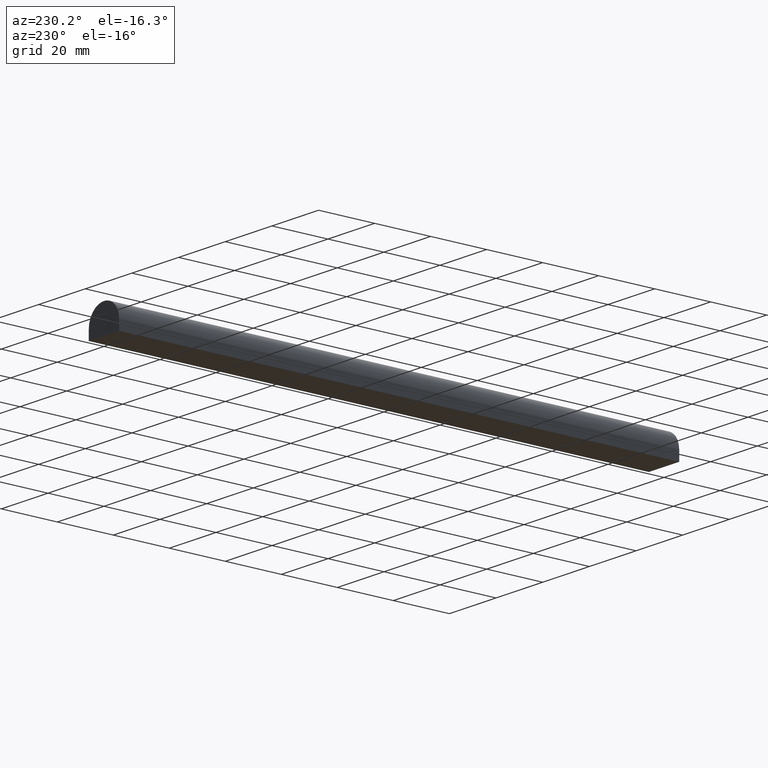
[diagram: clean part render]
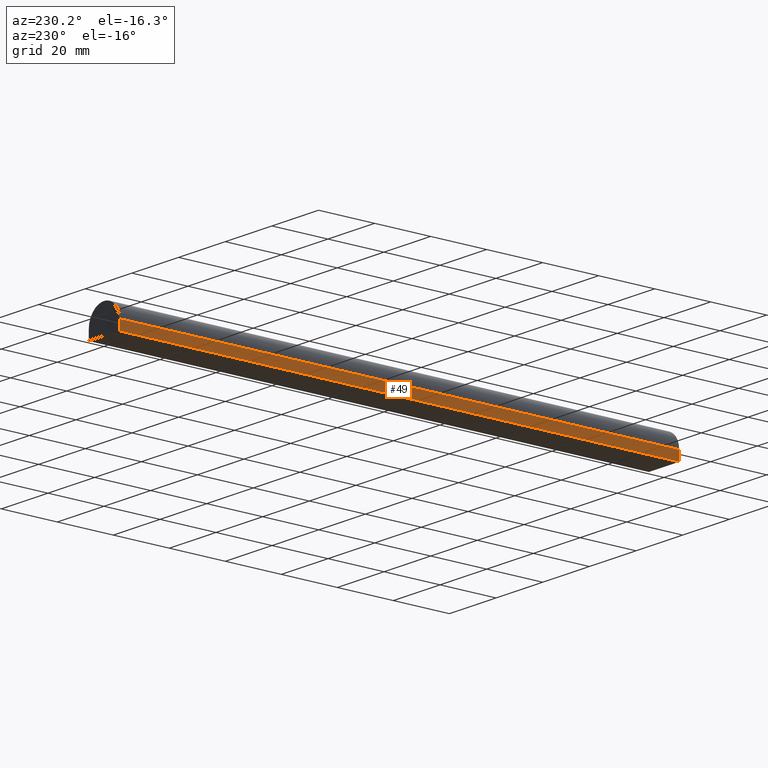
[diagram: same view with one face highlighted and labeled with its STEP entity id]
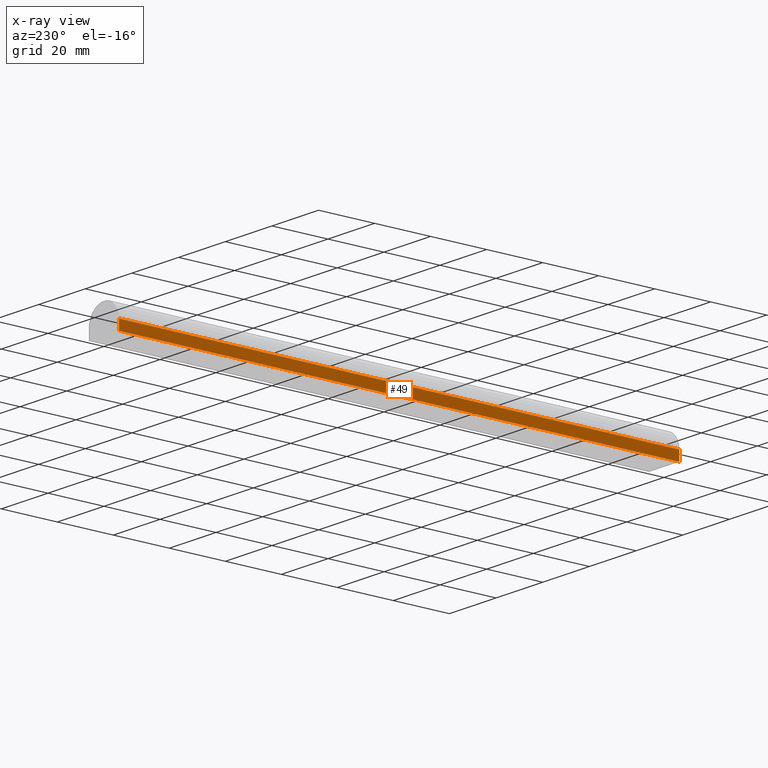
[diagram: x-ray of the same camera — body ghosted, the highlighted face saturated]
A machine part, auxiliary view. The second image highlights one B-rep face of the part: STEP entity #49.
The next image is the same camera in x-ray: the body ghosted, the highlighted face saturated — about 0% of this face is hidden behind the body in this view.
In plain terms, the highlighted planar face has unit normal (-1, 0, 0).
Its self-contained STEP definition (entity closure, byte-faithful):
#1 = VERTEX_POINT ( 'NONE', #234 ) ;
#3 = CARTESIAN_POINT ( 'NONE',  ( -6.500000000000000000, 1000.000000000000000, -5.000000000000000000 ) ) ;
#7 = AXIS2_PLACEMENT_3D ( 'NONE', #79, #198, #221 ) ;
#9 = VECTOR ( 'NONE', #52, 1000.000000000000000 ) ;
#14 = EDGE_CURVE ( 'NONE', #135, #1, #136, .T. ) ;
#18 = ORIENTED_EDGE ( 'NONE', *, *, #14, .F. ) ;
#41 = VECTOR ( 'NONE', #200, 1000.000000000000000 ) ;
#44 = ORIENTED_EDGE ( 'NONE', *, *, #101, .T. ) ;
#46 = FACE_OUTER_BOUND ( 'NONE', #140, .T. ) ;
#49 = ADVANCED_FACE ( 'NONE', ( #46 ), #230, .T. ) ;
#52 = DIRECTION ( 'NONE',  ( 0.0000000000000000000, -1.000000000000000000, 0.0000000000000000000 ) ) ;
#63 = LINE ( 'NONE', #3, #9 ) ;
#64 = VECTOR ( 'NONE', #93, 1000.000000000000000 ) ;
#79 = CARTESIAN_POINT ( 'NONE',  ( -6.500000000000000000, 1000.000000000000000, -1.500000000000000000 ) ) ;
#89 = EDGE_CURVE ( 'NONE', #194, #135, #205, .T. ) ;
#93 = DIRECTION ( 'NONE',  ( 0.0000000000000000000, -1.000000000000000000, 0.0000000000000000000 ) ) ;
#96 = CARTESIAN_POINT ( 'NONE',  ( -6.500000000000000000, 0.0000000000000000000, -1.500000000000000000 ) ) ;
#101 = EDGE_CURVE ( 'NONE', #199, #1, #63, .T. ) ;
#126 = VECTOR ( 'NONE', #131, 1000.000000000000000 ) ;
#127 = CARTESIAN_POINT ( 'NONE',  ( -6.500000000000000000, 200.0000000000000000, -5.000000000000000000 ) ) ;
#131 = DIRECTION ( 'NONE',  ( -0.0000000000000000000, -0.0000000000000000000, -1.000000000000000000 ) ) ;
#133 = ORIENTED_EDGE ( 'NONE', *, *, #89, .F. ) ;
#135 = VERTEX_POINT ( 'NONE', #96 ) ;
#136 = LINE ( 'NONE', #232, #41 ) ;
#140 = EDGE_LOOP ( 'NONE', ( #18, #133, #163, #44 ) ) ;
#153 = CARTESIAN_POINT ( 'NONE',  ( -6.500000000000000000, 1000.000000000000000, -1.500000000000000000 ) ) ;
#163 = ORIENTED_EDGE ( 'NONE', *, *, #167, .T. ) ;
#167 = EDGE_CURVE ( 'NONE', #194, #199, #235, .T. ) ;
#188 = CARTESIAN_POINT ( 'NONE',  ( -6.500000000000000000, 200.0000000000000000, 0.0000000000000000000 ) ) ;
#194 = VERTEX_POINT ( 'NONE', #227 ) ;
#198 = DIRECTION ( 'NONE',  ( -1.000000000000000000, 0.0000000000000000000, 0.0000000000000000000 ) ) ;
#199 = VERTEX_POINT ( 'NONE', #127 ) ;
#200 = DIRECTION ( 'NONE',  ( -0.0000000000000000000, -0.0000000000000000000, -1.000000000000000000 ) ) ;
#205 = LINE ( 'NONE', #153, #64 ) ;
#221 = DIRECTION ( 'NONE',  ( 0.0000000000000000000, 0.0000000000000000000, 1.000000000000000000 ) ) ;
#227 = CARTESIAN_POINT ( 'NONE',  ( -6.500000000000000000, 200.0000000000000000, -1.500000000000000000 ) ) ;
#230 = PLANE ( 'NONE',  #7 ) ;
#232 = CARTESIAN_POINT ( 'NONE',  ( -6.500000000000000000, 0.0000000000000000000, 0.0000000000000000000 ) ) ;
#234 = CARTESIAN_POINT ( 'NONE',  ( -6.500000000000000000, 0.0000000000000000000, -5.000000000000000000 ) ) ;
#235 = LINE ( 'NONE', #188, #126 ) ;